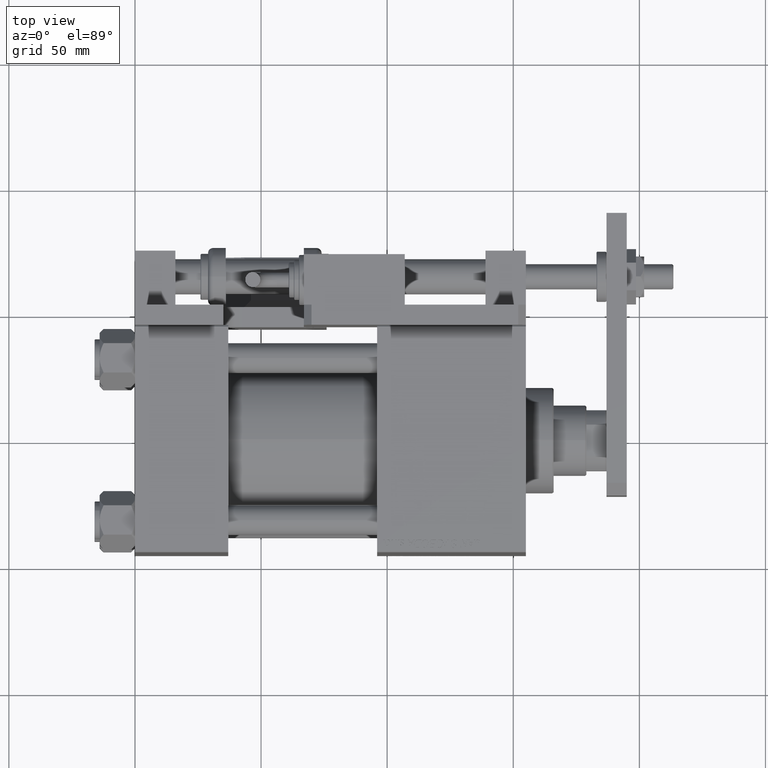
[diagram: clean part render]
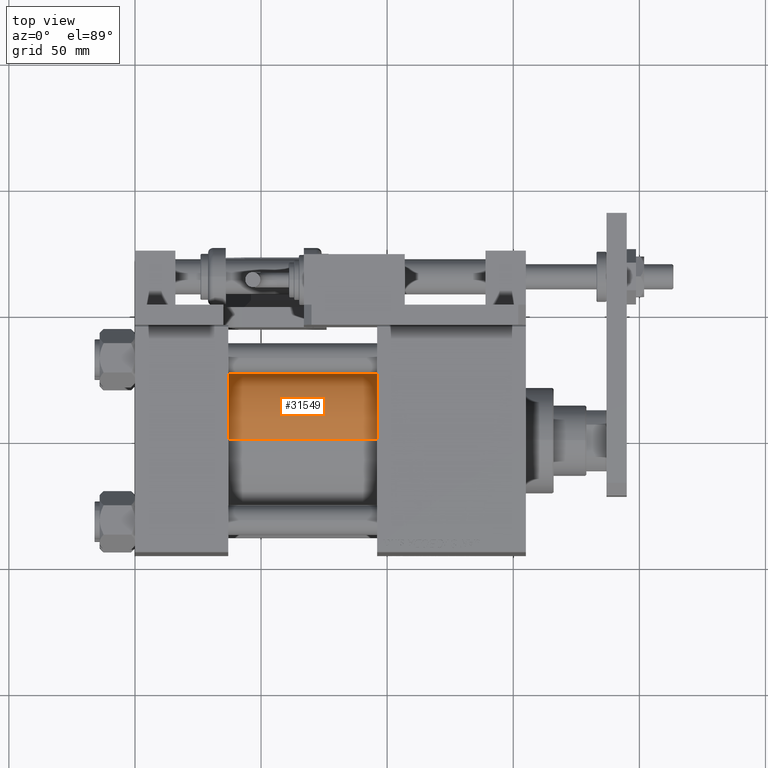
[diagram: same view with one face highlighted and labeled with its STEP entity id]
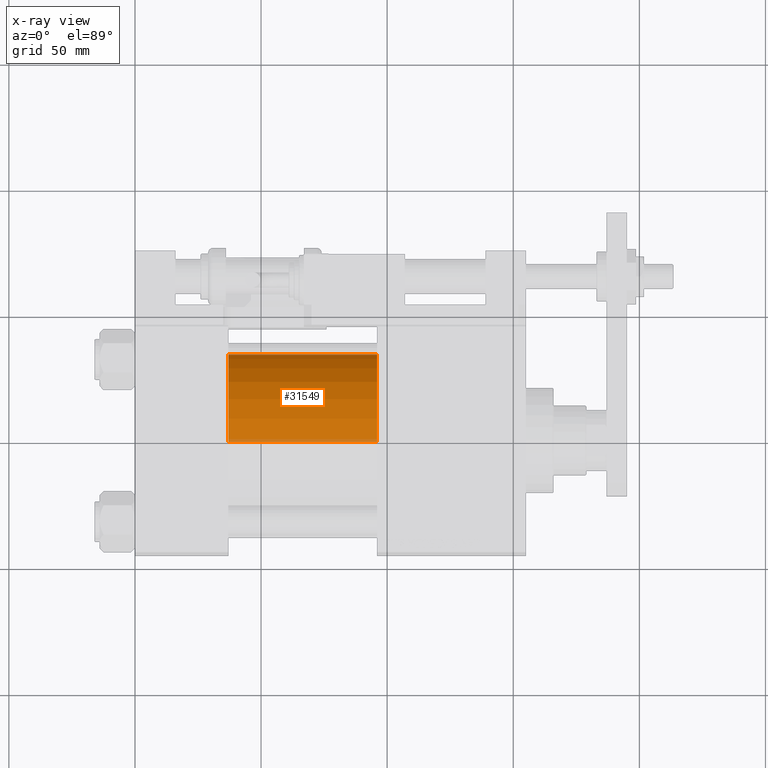
[diagram: x-ray of the same camera — body ghosted, the highlighted face saturated]
A machine part, top view. The second image highlights one B-rep face of the part: STEP entity #31549.
The next image is the same camera in x-ray: the body ghosted, the highlighted face saturated — about 5% of this face is hidden behind the body in this view.
In plain terms, the highlighted cylindrical surface (partial cylindrical patch) has radius 34.5 mm, axis along (-1, -0, -0).
Its self-contained STEP definition (entity closure, byte-faithful):
#861 = FACE_OUTER_BOUND ( 'NONE', #14127, .T. ) ;
#1112 = DIRECTION ( 'NONE',  ( -1.000000000000000000, -0.000000000000000000, -0.000000000000000000 ) ) ;
#1976 = CARTESIAN_POINT ( 'NONE',  ( 96.00000000000000000, -2.602085213965210642E-15, 0.000000000000000000 ) ) ;
#2507 = ORIENTED_EDGE ( 'NONE', *, *, #13098, .T. ) ;
#5573 = VERTEX_POINT ( 'NONE', #53587 ) ;
#5815 = CARTESIAN_POINT ( 'NONE',  ( 37.00000000000000000, -2.602085213965210642E-15, 34.50000000000000000 ) ) ;
#9661 = VECTOR ( 'NONE', #1112, 1000.000000000000000 ) ;
#9763 = AXIS2_PLACEMENT_3D ( 'NONE', #36387, #14315, #53653 ) ;
#10193 = CARTESIAN_POINT ( 'NONE',  ( 37.00000000000000000, -2.602085213965210642E-15, 0.000000000000000000 ) ) ;
#12198 = ORIENTED_EDGE ( 'NONE', *, *, #17037, .F. ) ;
#13098 = EDGE_CURVE ( 'NONE', #31774, #47911, #14645, .T. ) ;
#13306 = AXIS2_PLACEMENT_3D ( 'NONE', #1976, #40160, #35347 ) ;
#14127 = EDGE_LOOP ( 'NONE', ( #24787, #2507, #16943, #12198 ) ) ;
#14315 = DIRECTION ( 'NONE',  ( 1.000000000000000000, 0.000000000000000000, 0.000000000000000000 ) ) ;
#14645 = LINE ( 'NONE', #31913, #9661 ) ;
#14950 = AXIS2_PLACEMENT_3D ( 'NONE', #10193, #49231, #23198 ) ;
#16943 = ORIENTED_EDGE ( 'NONE', *, *, #53152, .T. ) ;
#17037 = EDGE_CURVE ( 'NONE', #5573, #40643, #53511, .T. ) ;
#18089 = CYLINDRICAL_SURFACE ( 'NONE', #13306, 34.50000000000000000 ) ;
#23198 = DIRECTION ( 'NONE',  ( 0.000000000000000000, 0.000000000000000000, 1.000000000000000000 ) ) ;
#23510 = CARTESIAN_POINT ( 'NONE',  ( 96.00000000000000000, -2.602085213965210642E-15, 34.50000000000000000 ) ) ;
#24787 = ORIENTED_EDGE ( 'NONE', *, *, #32909, .F. ) ;
#27432 = CARTESIAN_POINT ( 'NONE',  ( 37.00000000000000000, 1.622946243093158675E-15, -34.50000000000000000 ) ) ;
#31549 = ADVANCED_FACE ( 'NONE', ( #861 ), #18089, .T. ) ;
#31774 = VERTEX_POINT ( 'NONE', #41278 ) ;
#31913 = CARTESIAN_POINT ( 'NONE',  ( 96.00000000000000000, 1.622946243093158675E-15, -34.50000000000000000 ) ) ;
#32909 = EDGE_CURVE ( 'NONE', #31774, #5573, #43173, .T. ) ;
#35347 = DIRECTION ( 'NONE',  ( 0.000000000000000000, 0.000000000000000000, 1.000000000000000000 ) ) ;
#36387 = CARTESIAN_POINT ( 'NONE',  ( 96.00000000000000000, -2.602085213965210642E-15, 0.000000000000000000 ) ) ;
#39351 = CIRCLE ( 'NONE', #14950, 34.50000000000000000 ) ;
#40160 = DIRECTION ( 'NONE',  ( -1.000000000000000000, -0.000000000000000000, -0.000000000000000000 ) ) ;
#40643 = VERTEX_POINT ( 'NONE', #5815 ) ;
#41250 = VECTOR ( 'NONE', #44187, 1000.000000000000000 ) ;
#41278 = CARTESIAN_POINT ( 'NONE',  ( 96.00000000000000000, 1.622946243093158675E-15, -34.50000000000000000 ) ) ;
#43173 = CIRCLE ( 'NONE', #9763, 34.50000000000000000 ) ;
#44187 = DIRECTION ( 'NONE',  ( -1.000000000000000000, -0.000000000000000000, -0.000000000000000000 ) ) ;
#47911 = VERTEX_POINT ( 'NONE', #27432 ) ;
#49231 = DIRECTION ( 'NONE',  ( 1.000000000000000000, -0.000000000000000000, 0.000000000000000000 ) ) ;
#53152 = EDGE_CURVE ( 'NONE', #47911, #40643, #39351, .T. ) ;
#53511 = LINE ( 'NONE', #23510, #41250 ) ;
#53587 = CARTESIAN_POINT ( 'NONE',  ( 96.00000000000000000, -2.602085213965210642E-15, 34.50000000000000000 ) ) ;
#53653 = DIRECTION ( 'NONE',  ( 0.000000000000000000, 0.000000000000000000, -1.000000000000000000 ) ) ;